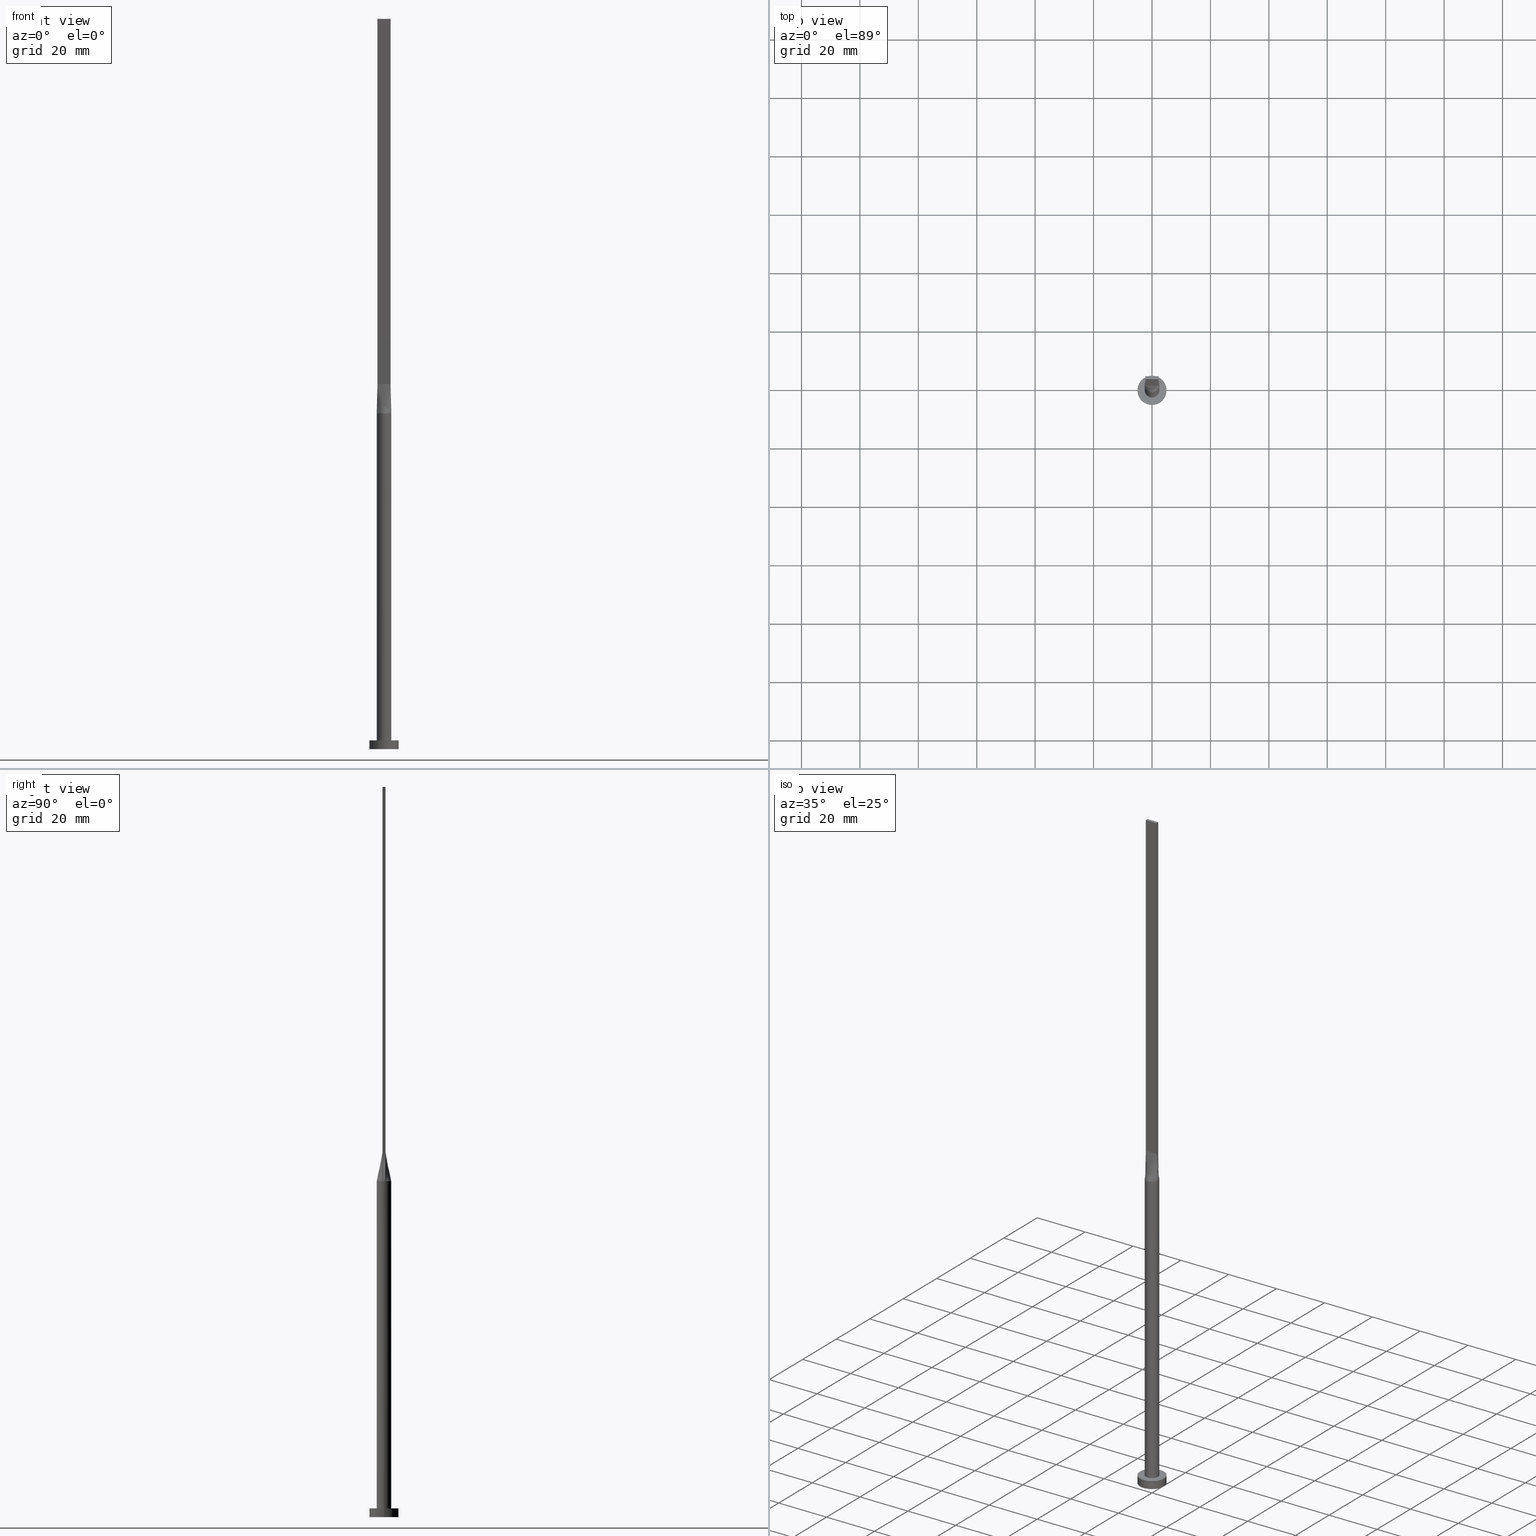
[diagram: canonical four-view strip — front | top / right | iso, engineering-drawing reading convention]
A machine part, canonical four-view strip (front | top / right | iso — engineering-drawing reading convention). The complete STEP part file that produces these views, byte-faithful:
ISO-10303-21;
HEADER;
FILE_DESCRIPTION (( 'STEP AP203' ),
    '1' );
FILE_NAME ('dfc2.STEP',
    '2023-02-13T12:34:24',
    ( '' ),
    ( '' ),
    'SwSTEP 2.0',
    'SolidWorks 2019',
    '' );
FILE_SCHEMA (( 'CONFIG_CONTROL_DESIGN' ));
ENDSEC;

DATA;
#1 = CARTESIAN_POINT ( 'NONE',  ( -0.6674771052374477431, -2.430579781493059865, 115.0000000000000142 ) ) ;
#2 = VECTOR ( 'NONE', #172, 1000.000000000000000 ) ;
#3 = LINE ( 'NONE', #226, #452 ) ;
#4 = CC_DESIGN_PERSON_AND_ORGANIZATION_ASSIGNMENT ( #440, #428, ( #199 ) ) ;
#5 = VERTEX_POINT ( 'NONE', #164 ) ;
#6 = ORIENTED_EDGE ( 'NONE', *, *, #454, .T. ) ;
#7 = CARTESIAN_POINT ( 'NONE',  ( 2.250000000000000000, -0.3333333333333324822, 125.0000000000000000 ) ) ;
#8 = APPLICATION_CONTEXT ( 'configuration controlled 3d designs of mechanical parts and assemblies' ) ;
#9 = VERTEX_POINT ( 'NONE', #168 ) ;
#10 = DIRECTION ( 'NONE',  ( -4.336808689942019708E-16, -1.000000000000000000, 0.000000000000000000 ) ) ;
#11 = COORDINATED_UNIVERSAL_TIME_OFFSET ( 1, 0, .AHEAD. ) ;
#12 = ADVANCED_FACE ( 'NONE', ( #258 ), #478, .T. ) ;
#13 = ORIENTED_EDGE ( 'NONE', *, *, #233, .F. ) ;
#14 = PERSON ( 'NEUR�EN�', 'NEUR�EN�', 'NEUR�EN�', ('NEUR�EN�'), ('NEUR�EN�'), ('NEUR�EN�') ) ;
#15 = LOCAL_TIME ( 13, 34, 24.00000000000000000, #324 ) ;
#16 = CARTESIAN_POINT ( 'NONE',  ( 0.1874999999999967526, 0.5000000000000002220, 125.0000000000000000 ) ) ;
#17 = CARTESIAN_POINT ( 'NONE',  ( -2.440467650459882343, -0.5423261445466400765, 115.0000000000000000 ) ) ;
#18 = AXIS2_PLACEMENT_3D ( 'NONE', #93, #534, #491 ) ;
#19 = CARTESIAN_POINT ( 'NONE',  ( -0.6674771052374470770, 2.430579781493059421, 114.9999999999999858 ) ) ;
#20 = FACE_OUTER_BOUND ( 'NONE', #146, .T. ) ;
#21 = DATE_AND_TIME ( #79, #15 ) ;
#22 = DIRECTION ( 'NONE',  ( -0.000000000000000000, -0.000000000000000000, -1.000000000000000000 ) ) ;
#23 = FACE_OUTER_BOUND ( 'NONE', #486, .T. ) ;
#24 = CALENDAR_DATE ( 2023, 13, 2 ) ;
#25 = DIRECTION ( 'NONE',  ( -0.000000000000000000, -0.000000000000000000, -1.000000000000000000 ) ) ;
#26 = CARTESIAN_POINT ( 'NONE',  ( -2.062500000000000000, 0.5000000000000002220, 125.0000000000000000 ) ) ;
#27 = CARTESIAN_POINT ( 'NONE',  ( 2.396350003401058526, 0.7408555563113465858, 114.9999999999999858 ) ) ;
#28 = CARTESIAN_POINT ( 'NONE',  ( 2.249999999999999556, 0.5000000000000002220, 250.0000000000000000 ) ) ;
#29 = CARTESIAN_POINT ( 'NONE',  ( -1.875000000000000222, -0.4999999999999995559, 125.0000000000000000 ) ) ;
#30 = AXIS2_PLACEMENT_3D ( 'NONE', #173, #136, #265 ) ;
#31 = VERTEX_POINT ( 'NONE', #129 ) ;
#32 = DIRECTION ( 'NONE',  ( 0.000000000000000000, 0.000000000000000000, 1.000000000000000000 ) ) ;
#33 = DIRECTION ( 'NONE',  ( 1.000000000000000000, 0.000000000000000000, -0.000000000000000000 ) ) ;
#34 = AXIS2_PLACEMENT_3D ( 'NONE', #261, #499, #215 ) ;
#35 = LINE ( 'NONE', #200, #361 ) ;
#36 = EDGE_CURVE ( 'NONE', #70, #106, #169, .T. ) ;
#37 = APPROVAL ( #500, 'NEUR�EN�' ) ;
#38 = CARTESIAN_POINT ( 'NONE',  ( 0.000000000000000000, 0.000000000000000000, 0.000000000000000000 ) ) ;
#39 = CARTESIAN_POINT ( 'NONE',  ( -2.440694335308545071, 0.5423767520433731004, 115.0000000000000000 ) ) ;
#40 = PLANE ( 'NONE',  #34 ) ;
#41 = CARTESIAN_POINT ( 'NONE',  ( -2.249999999999999556, 0.5000000000000002220, 250.0000000000000000 ) ) ;
#42 = APPLICATION_PROTOCOL_DEFINITION ( 'international standard', 'config_control_design', 1994, #8 ) ;
#43 = LINE ( 'NONE', #350, #311 ) ;
#44 = ORIENTED_EDGE ( 'NONE', *, *, #36, .F. ) ;
#45 = DIRECTION ( 'NONE',  ( -0.000000000000000000, -0.000000000000000000, -1.000000000000000000 ) ) ;
#46 = CARTESIAN_POINT ( 'NONE',  ( -2.396350003401058082, 0.7408555563113466969, 114.9999999999999858 ) ) ;
#47 = CARTESIAN_POINT ( 'NONE',  ( -0.3749999999999997780, -0.4999999999999995559, 125.0000000000000000 ) ) ;
#48 = ORIENTED_EDGE ( 'NONE', *, *, #472, .F. ) ;
#49 = LINE ( 'NONE', #230, #492 ) ;
#50 = ORIENTED_EDGE ( 'NONE', *, *, #98, .F. ) ;
#51 = CARTESIAN_POINT ( 'NONE',  ( 1.260416918790968399, -2.182794756967428640, 114.9999999999999858 ) ) ;
#52 = APPLICATION_CONTEXT ( 'configuration controlled 3d designs of mechanical parts and assemblies' ) ;
#53 = DIRECTION ( 'NONE',  ( 0.000000000000000000, 0.000000000000000000, 1.000000000000000000 ) ) ;
#54 = CARTESIAN_POINT ( 'NONE',  ( 0.000000000000000000, 0.000000000000000000, 250.0000000000000000 ) ) ;
#55 = VECTOR ( 'NONE', #138, 1000.000000000000000 ) ;
#56 = CC_DESIGN_APPROVAL ( #407, ( #199 ) ) ;
#57 = CARTESIAN_POINT ( 'NONE',  ( 2.250000000000000000, -0.4999999999999997780, 125.0000000000000000 ) ) ;
#58 = ORIENTED_EDGE ( 'NONE', *, *, #298, .F. ) ;
#59 = EDGE_LOOP ( 'NONE', ( #289, #150 ) ) ;
#60 = EDGE_CURVE ( 'NONE', #558, #229, #144, .T. ) ;
#61 = DIRECTION ( 'NONE',  ( 0.000000000000000000, 0.000000000000000000, 1.000000000000000000 ) ) ;
#62 = ADVANCED_FACE ( 'NONE', ( #23 ), #442, .T. ) ;
#63 = VECTOR ( 'NONE', #203, 1000.000000000000000 ) ;
#64 = DIRECTION ( 'NONE',  ( 1.000000000000000000, 0.000000000000000000, 0.000000000000000000 ) ) ;
#65 = ORIENTED_EDGE ( 'NONE', *, *, #406, .T. ) ;
#66 = CARTESIAN_POINT ( 'NONE',  ( -2.499291179871646840, 0.1829277781556734317, 115.0000000000000000 ) ) ;
#67 = EDGE_LOOP ( 'NONE', ( #44, #576, #182, #285, #223, #548 ) ) ;
#68 = CIRCLE ( 'NONE', #396, 5.000000000000000000 ) ;
#69 = DIRECTION ( 'NONE',  ( -0.000000000000000000, -0.000000000000000000, -1.000000000000000000 ) ) ;
#70 = VERTEX_POINT ( 'NONE', #338 ) ;
#71 = CARTESIAN_POINT ( 'NONE',  ( 2.440467650459881899, 0.5423261445466406316, 115.0000000000000000 ) ) ;
#72 = APPROVAL_DATE_TIME ( #21, #461 ) ;
#73 =( NAMED_UNIT ( * ) PLANE_ANGLE_UNIT ( ) SI_UNIT ( $, .RADIAN. ) );
#74 = ORIENTED_EDGE ( 'NONE', *, *, #268, .F. ) ;
#75 = CARTESIAN_POINT ( 'NONE',  ( 2.093723281432890104, 1.388001797188529007, 114.9999999999999574 ) ) ;
#76 = CYLINDRICAL_SURFACE ( 'NONE', #165, 2.500000000000000000 ) ;
#77 = FACE_OUTER_BOUND ( 'NONE', #148, .T. ) ;
#78 = EDGE_LOOP ( 'NONE', ( #420, #519, #74, #508, #503 ) ) ;
#79 = CALENDAR_DATE ( 2023, 13, 2 ) ;
#80 = DIRECTION ( 'NONE',  ( 1.000000000000000000, 0.000000000000000000, -0.000000000000000000 ) ) ;
#81 = CARTESIAN_POINT ( 'NONE',  ( -0.3342381693191151526, 2.499999999999999556, 115.0000000000000284 ) ) ;
#82 = DIRECTION ( 'NONE',  ( -0.000000000000000000, -0.000000000000000000, -1.000000000000000000 ) ) ;
#83 = ORIENTED_EDGE ( 'NONE', *, *, #211, .F. ) ;
#84 = CARTESIAN_POINT ( 'NONE',  ( -0.1875000000000033584, 0.5000000000000002220, 125.0000000000000000 ) ) ;
#85 = APPROVAL_STATUS ( 'not_yet_approved' ) ;
#86 = EDGE_CURVE ( 'NONE', #435, #9, #166, .T. ) ;
#87 = AXIS2_PLACEMENT_3D ( 'NONE', #567, #523, #190 ) ;
#88 = VERTEX_POINT ( 'NONE', #529 ) ;
#89 = DIRECTION ( 'NONE',  ( -0.000000000000000000, -0.000000000000000000, -1.000000000000000000 ) ) ;
#90 = ORIENTED_EDGE ( 'NONE', *, *, #391, .T. ) ;
#91 = PRODUCT ( 'dfc2', 'dfc2', '', ( #453 ) ) ;
#92 = CARTESIAN_POINT ( 'NONE',  ( -0.3342381693191159853, -2.499999999999999556, 115.0000000000000000 ) ) ;
#93 = CARTESIAN_POINT ( 'NONE',  ( 0.000000000000000000, 0.000000000000000000, 3.000000000000000000 ) ) ;
#94 = CIRCLE ( 'NONE', #339, 2.500000000000000000 ) ;
#95 = CARTESIAN_POINT ( 'NONE',  ( -2.323660390030918510, 0.9543733860570832173, 114.9999999999999858 ) ) ;
#96 = AXIS2_PLACEMENT_3D ( 'NONE', #353, #539, #457 ) ;
#97 = EDGE_LOOP ( 'NONE', ( #307, #184, #48, #552 ) ) ;
#98 = EDGE_CURVE ( 'NONE', #106, #293, #35, .T. ) ;
#99 = CALENDAR_DATE ( 2023, 13, 2 ) ;
#100 = CARTESIAN_POINT ( 'NONE',  ( 0.000000000000000000, 0.000000000000000000, 115.0000000000000000 ) ) ;
#101 = CARTESIAN_POINT ( 'NONE',  ( 2.440467650459881899, -0.5423261445466405206, 115.0000000000000000 ) ) ;
#102 = CARTESIAN_POINT ( 'NONE',  ( 0.000000000000000000, 0.000000000000000000, 3.000000000000000000 ) ) ;
#103 = VERTEX_POINT ( 'NONE', #252 ) ;
#104 = CC_DESIGN_APPROVAL ( #461, ( #404 ) ) ;
#105 = CARTESIAN_POINT ( 'NONE',  ( 2.249999999999999556, 0.3333333333333341475, 125.0000000000000000 ) ) ;
#106 = VERTEX_POINT ( 'NONE', #210 ) ;
#107 = CARTESIAN_POINT ( 'NONE',  ( -5.000000000000000000, 0.000000000000000000, 3.000000000000000000 ) ) ;
#108 = CARTESIAN_POINT ( 'NONE',  ( 0.000000000000000000, 0.000000000000000000, 0.000000000000000000 ) ) ;
#109 = LINE ( 'NONE', #308, #443 ) ;
#110 = CARTESIAN_POINT ( 'NONE',  ( -0.3342381693191151526, 2.499999999999999556, 115.0000000000000284 ) ) ;
#111 = ADVANCED_FACE ( 'NONE', ( #395 ), #394, .T. ) ;
#112 = CC_DESIGN_PERSON_AND_ORGANIZATION_ASSIGNMENT ( #392, #566, ( #404 ) ) ;
#113 = ORIENTED_EDGE ( 'NONE', *, *, #262, .F. ) ;
#114 = APPROVAL_STATUS ( 'not_yet_approved' ) ;
#115 = PLANE ( 'NONE',  #384 ) ;
#116 = DATE_AND_TIME ( #559, #579 ) ;
#117 = CIRCLE ( 'NONE', #490, 2.500000000000000000 ) ;
#118 = FACE_BOUND ( 'NONE', #412, .T. ) ;
#119 = DIRECTION ( 'NONE',  ( 1.000000000000000000, 0.000000000000000000, 0.000000000000000000 ) ) ;
#120 = ADVANCED_FACE ( 'NONE', ( #362 ), #445, .T. ) ;
#121 = PRODUCT_RELATED_PRODUCT_CATEGORY ( 'detail', '', ( #91 ) ) ;
#122 = PLANE ( 'NONE',  #553 ) ;
#123 = CIRCLE ( 'NONE', #482, 5.000000000000000000 ) ;
#124 = CARTESIAN_POINT ( 'NONE',  ( -1.935644909179609297, 1.608159499248285718, 115.0000000000000284 ) ) ;
#125 = CARTESIAN_POINT ( 'NONE',  ( -1.935644909179609297, -1.608159499248284829, 115.0000000000000142 ) ) ;
#126 = ORIENTED_EDGE ( 'NONE', *, *, #98, .T. ) ;
#127 = CARTESIAN_POINT ( 'NONE',  ( -1.312500000000000222, -0.4999999999999995559, 125.0000000000000000 ) ) ;
#128 = CARTESIAN_POINT ( 'NONE',  ( 2.396350003401058526, 0.7408555563113465858, 114.9999999999999858 ) ) ;
#129 = CARTESIAN_POINT ( 'NONE',  ( -2.249999999999999556, 0.5000000000000002220, 125.0000000000000000 ) ) ;
#130 = CARTESIAN_POINT ( 'NONE',  ( 2.249999999999999556, 0.5000000000000002220, 250.0000000000000000 ) ) ;
#131 = DIRECTION ( 'NONE',  ( -0.000000000000000000, -0.000000000000000000, -1.000000000000000000 ) ) ;
#132 = CARTESIAN_POINT ( 'NONE',  ( -0.9375000000000002220, -0.4999999999999995559, 125.0000000000000000 ) ) ;
#133 = VERTEX_POINT ( 'NONE', #471 ) ;
#134 = FACE_OUTER_BOUND ( 'NONE', #409, .T. ) ;
#135 = VECTOR ( 'NONE', #532, 1000.000000000000000 ) ;
#136 = DIRECTION ( 'NONE',  ( 7.228014483236697048E-17, 1.000000000000000000, -0.000000000000000000 ) ) ;
#137 = CARTESIAN_POINT ( 'NONE',  ( 0.3342381693191144310, -2.500000000000000444, 114.9999999999999858 ) ) ;
#138 = DIRECTION ( 'NONE',  ( -1.000000000000000000, -0.000000000000000000, -0.000000000000000000 ) ) ;
#139 = EDGE_CURVE ( 'NONE', #70, #558, #109, .T. ) ;
#140 = EDGE_CURVE ( 'NONE', #544, #88, #117, .T. ) ;
#141 = ORIENTED_EDGE ( 'NONE', *, *, #233, .T. ) ;
#142 = CARTESIAN_POINT ( 'NONE',  ( 2.499291179871646396, 0.1829277781556730154, 115.0000000000000000 ) ) ;
#143 = ORIENTED_EDGE ( 'NONE', *, *, #340, .F. ) ;
#144 = CIRCLE ( 'NONE', #565, 2.500000000000000000 ) ;
#145 = PERSON_AND_ORGANIZATION ( #14, #156 ) ;
#146 = EDGE_LOOP ( 'NONE', ( #152, #473, #58, #267 ) ) ;
#147 = CARTESIAN_POINT ( 'NONE',  ( -2.249999999999999556, -0.1666666666666657692, 125.0000000000000000 ) ) ;
#148 = EDGE_LOOP ( 'NONE', ( #363, #6, #281, #179 ) ) ;
#149 = CARTESIAN_POINT ( 'NONE',  ( 2.250000000000000000, -0.4999999999999997780, 125.0000000000000000 ) ) ;
#150 = ORIENTED_EDGE ( 'NONE', *, *, #451, .T. ) ;
#151 = APPROVAL_ROLE ( '' ) ;
#152 = ORIENTED_EDGE ( 'NONE', *, *, #537, .T. ) ;
#153 = CARTESIAN_POINT ( 'NONE',  ( 2.062499999999998668, 0.5000000000000002220, 125.0000000000000000 ) ) ;
#154 = DATE_AND_TIME ( #24, #187 ) ;
#155 = CARTESIAN_POINT ( 'NONE',  ( 1.519400572660313031, 2.006070808634367708, 115.0000000000000284 ) ) ;
#156 = ORGANIZATION ( 'NEUR�EN�', 'NEUR�EN�', '' ) ;
#157 = DIRECTION ( 'NONE',  ( -0.01904314058352520739, -0.004231809018561120961, 0.9998097071888962795 ) ) ;
#158 = DATE_TIME_ROLE ( 'creation_date' ) ;
#159 = CARTESIAN_POINT ( 'NONE',  ( -2.396350003401058970, -0.7408555563113458087, 114.9999999999999858 ) ) ;
#160 = ADVANCED_FACE ( 'NONE', ( #517 ), #572, .T. ) ;
#161 = CARTESIAN_POINT ( 'NONE',  ( -0.3750000000000034417, 0.5000000000000002220, 125.0000000000000000 ) ) ;
#162 = ADVANCED_FACE ( 'NONE', ( #263 ), #40, .F. ) ;
#163 = CARTESIAN_POINT ( 'NONE',  ( 2.440706242928429415, -0.5423794613208688942, 115.0000000000000000 ) ) ;
#164 = CARTESIAN_POINT ( 'NONE',  ( -5.000000000000000000, 0.000000000000000000, 0.000000000000000000 ) ) ;
#165 = AXIS2_PLACEMENT_3D ( 'NONE', #436, #236, #421 ) ;
#166 = LINE ( 'NONE', #382, #389 ) ;
#167 = CARTESIAN_POINT ( 'NONE',  ( -2.396350003401058082, 0.7408555563113466969, 114.9999999999999858 ) ) ;
#168 = CARTESIAN_POINT ( 'NONE',  ( 2.250000000000000000, -0.4999999999999997780, 125.0000000000000000 ) ) ;
#169 = CIRCLE ( 'NONE', #516, 2.500000000000000000 ) ;
#170 = CARTESIAN_POINT ( 'NONE',  ( -2.249999999999999556, 0.5000000000000002220, 250.0000000000000000 ) ) ;
#171 = EDGE_LOOP ( 'NONE', ( #283, #65, #113, #518 ) ) ;
#172 = DIRECTION ( 'NONE',  ( -0.01904314058352516228, 0.004231809018561174737, 0.9998097071888962795 ) ) ;
#173 = CARTESIAN_POINT ( 'NONE',  ( -2.250000000000000000, -0.4999999999999994449, 250.0000000000000000 ) ) ;
#174 = EDGE_CURVE ( 'NONE', #297, #546, #450, .T. ) ;
#175 = LINE ( 'NONE', #130, #220 ) ;
#176 = VECTOR ( 'NONE', #448, 1000.000000000000000 ) ;
#177 = APPROVAL_ROLE ( '' ) ;
#178 = CARTESIAN_POINT ( 'NONE',  ( 1.519400572660313031, -2.006070808634367264, 115.0000000000000142 ) ) ;
#179 = ORIENTED_EDGE ( 'NONE', *, *, #189, .F. ) ;
#180 = CARTESIAN_POINT ( 'NONE',  ( 0.7500000000000000000, -0.4999999999999995559, 125.0000000000000000 ) ) ;
#181 = ORIENTED_EDGE ( 'NONE', *, *, #472, .T. ) ;
#182 = ORIENTED_EDGE ( 'NONE', *, *, #60, .T. ) ;
#183 = CARTESIAN_POINT ( 'NONE',  ( -2.249999999999999556, 0.5000000000000002220, 125.0000000000000000 ) ) ;
#184 = ORIENTED_EDGE ( 'NONE', *, *, #286, .F. ) ;
#185 = CIRCLE ( 'NONE', #530, 5.000000000000000000 ) ;
#186 = EDGE_CURVE ( 'NONE', #546, #31, #574, .T. ) ;
#187 = LOCAL_TIME ( 13, 34, 24.00000000000000000, #375 ) ;
#188 = ORIENTED_EDGE ( 'NONE', *, *, #341, .T. ) ;
#189 = EDGE_CURVE ( 'NONE', #460, #5, #43, .T. ) ;
#190 = DIRECTION ( 'NONE',  ( 1.000000000000000000, 0.000000000000000000, 0.000000000000000000 ) ) ;
#191 = CARTESIAN_POINT ( 'NONE',  ( 2.440467650459881899, 0.5423261445466404096, 115.0000000000000000 ) ) ;
#192 = CARTESIAN_POINT ( 'NONE',  ( -1.260416918790968843, 2.182794756967428196, 115.0000000000000000 ) ) ;
#193 = PERSON_AND_ORGANIZATION ( #14, #156 ) ;
#194 = CARTESIAN_POINT ( 'NONE',  ( -1.312500000000001998, 0.5000000000000002220, 125.0000000000000000 ) ) ;
#195 = ORIENTED_EDGE ( 'NONE', *, *, #264, .F. ) ;
#196 = APPROVAL_ROLE ( '' ) ;
#197 = CARTESIAN_POINT ( 'NONE',  ( -2.250000000000000000, -0.4999999999999994449, 250.0000000000000000 ) ) ;
#198 = CARTESIAN_POINT ( 'NONE',  ( -2.440467650459882343, 0.5423261445466395214, 115.0000000000000000 ) ) ;
#199 = SECURITY_CLASSIFICATION ( '', '', #241 ) ;
#200 = CARTESIAN_POINT ( 'NONE',  ( 2.345233825229940283, 0.5211630722733202603, 120.0000000000000000 ) ) ;
#201 = CARTESIAN_POINT ( 'NONE',  ( 1.499999999999997558, 0.5000000000000002220, 125.0000000000000000 ) ) ;
#202 = CARTESIAN_POINT ( 'NONE',  ( -2.249999999999999556, 0.5000000000000002220, 250.0000000000000000 ) ) ;
#203 = DIRECTION ( 'NONE',  ( -4.336808689942017736E-16, 1.000000000000000000, 0.000000000000000000 ) ) ;
#204 = CARTESIAN_POINT ( 'NONE',  ( -2.249999999999999556, 0.5000000000000002220, 125.0000000000000000 ) ) ;
#205 = VECTOR ( 'NONE', #485, 1000.000000000000000 ) ;
#206 = DIRECTION ( 'NONE',  ( 0.000000000000000000, 0.000000000000000000, 1.000000000000000000 ) ) ;
#207 = ORIENTED_EDGE ( 'NONE', *, *, #406, .F. ) ;
#208 = CARTESIAN_POINT ( 'NONE',  ( 0.6674771052374470770, 2.430579781493058977, 114.9999999999999858 ) ) ;
#209 = LINE ( 'NONE', #237, #354 ) ;
#210 = CARTESIAN_POINT ( 'NONE',  ( 2.440676307083422980, 0.5423728264510006003, 115.0000000000000000 ) ) ;
#211 = EDGE_CURVE ( 'NONE', #227, #275, #456, .T. ) ;
#212 = DIRECTION ( 'NONE',  ( 1.000000000000000000, 0.000000000000000000, 0.000000000000000000 ) ) ;
#213 = ADVANCED_FACE ( 'NONE', ( #134 ), #302, .F. ) ;
#214 = PRODUCT_DEFINITION_SHAPE ( 'NONE', 'NONE',  #325 ) ;
#215 = DIRECTION ( 'NONE',  ( 0.000000000000000000, -0.000000000000000000, -1.000000000000000000 ) ) ;
#216 = DIRECTION ( 'NONE',  ( 0.000000000000000000, 0.000000000000000000, 1.000000000000000000 ) ) ;
#217 = DIRECTION ( 'NONE',  ( 1.000000000000000000, 0.000000000000000000, 0.000000000000000000 ) ) ;
#218 = ADVANCED_FACE ( 'NONE', ( #504 ), #462, .T. ) ;
#219 = EDGE_CURVE ( 'NONE', #88, #229, #314, .T. ) ;
#220 = VECTOR ( 'NONE', #89, 1000.000000000000000 ) ;
#221 = VECTOR ( 'NONE', #403, 1000.000000000000000 ) ;
#222 = VECTOR ( 'NONE', #346, 1000.000000000000000 ) ;
#223 = ORIENTED_EDGE ( 'NONE', *, *, #140, .F. ) ;
#224 =( GEOMETRIC_REPRESENTATION_CONTEXT ( 3 ) GLOBAL_UNCERTAINTY_ASSIGNED_CONTEXT ( ( #577 ) ) GLOBAL_UNIT_ASSIGNED_CONTEXT ( ( #397, #73, #301 ) ) REPRESENTATION_CONTEXT ( 'NONE', 'WORKASPACE' ) );
#225 = ORIENTED_EDGE ( 'NONE', *, *, #570, .F. ) ;
#226 = CARTESIAN_POINT ( 'NONE',  ( 5.000000000000000000, 6.123233995736766282E-16, 3.000000000000000000 ) ) ;
#227 = VERTEX_POINT ( 'NONE', #342 ) ;
#228 = AXIS2_PLACEMENT_3D ( 'NONE', #334, #533, #296 ) ;
#229 = VERTEX_POINT ( 'NONE', #372 ) ;
#230 = CARTESIAN_POINT ( 'NONE',  ( -2.345233825229940727, 0.5211630722733198162, 120.0000000000000000 ) ) ;
#231 = DIRECTION ( 'NONE',  ( 1.000000000000000000, -4.440892098500626162E-15, 0.000000000000000000 ) ) ;
#232 = CARTESIAN_POINT ( 'NONE',  ( 1.875000000000000222, -0.4999999999999997780, 125.0000000000000000 ) ) ;
#233 = EDGE_CURVE ( 'NONE', #103, #435, #522, .T. ) ;
#234 = ADVANCED_FACE ( 'NONE', ( #118, #330 ), #115, .T. ) ;
#235 = CARTESIAN_POINT ( 'NONE',  ( 2.323660390030918954, 0.9543733860570833283, 115.0000000000000426 ) ) ;
#236 = DIRECTION ( 'NONE',  ( -0.000000000000000000, -0.000000000000000000, -1.000000000000000000 ) ) ;
#237 = CARTESIAN_POINT ( 'NONE',  ( -2.345233825229941171, -0.5211630722733197052, 120.0000000000000000 ) ) ;
#238 = CARTESIAN_POINT ( 'NONE',  ( -2.249999999999999556, 0.3333333333333338699, 125.0000000000000000 ) ) ;
#239 = ORIENTED_EDGE ( 'NONE', *, *, #454, .F. ) ;
#240 = DIRECTION ( 'NONE',  ( 0.000000000000000000, 0.000000000000000000, 1.000000000000000000 ) ) ;
#241 = SECURITY_CLASSIFICATION_LEVEL ( 'unclassified' ) ;
#242 = AXIS2_PLACEMENT_3D ( 'NONE', #561, #556, #292 ) ;
#243 = CARTESIAN_POINT ( 'NONE',  ( 0.9374999999999966693, 0.5000000000000002220, 125.0000000000000000 ) ) ;
#244 = CARTESIAN_POINT ( 'NONE',  ( 2.250000000000000000, -0.4999999999999997780, 250.0000000000000000 ) ) ;
#245 = PERSON_AND_ORGANIZATION ( #14, #156 ) ;
#246 = CYLINDRICAL_SURFACE ( 'NONE', #405, 5.000000000000000000 ) ;
#247 = ORIENTED_EDGE ( 'NONE', *, *, #264, .T. ) ;
#248 = SHAPE_DEFINITION_REPRESENTATION ( #214, #526 ) ;
#249 = LINE ( 'NONE', #288, #205 ) ;
#250 = APPROVAL_PERSON_ORGANIZATION ( #521, #407, #196 ) ;
#251 = CARTESIAN_POINT ( 'NONE',  ( -0.6674771052374470770, 2.430579781493059421, 114.9999999999999858 ) ) ;
#252 = CARTESIAN_POINT ( 'NONE',  ( -2.250000000000000000, -0.4999999999999994449, 250.0000000000000000 ) ) ;
#253 = PERSON_AND_ORGANIZATION_ROLE ( 'design_supplier' ) ;
#254 = DIRECTION ( 'NONE',  ( 0.000000000000000000, 0.000000000000000000, 1.000000000000000000 ) ) ;
#255 = VECTOR ( 'NONE', #332, 1000.000000000000000 ) ;
#256 = APPROVAL_DATE_TIME ( #531, #37 ) ;
#257 = LINE ( 'NONE', #444, #2 ) ;
#258 = FACE_OUTER_BOUND ( 'NONE', #67, .T. ) ;
#259 = DIRECTION ( 'NONE',  ( 4.336808689942019708E-16, 1.000000000000000000, 0.000000000000000000 ) ) ;
#260 = LOCAL_TIME ( 13, 34, 24.00000000000000000, #475 ) ;
#261 = CARTESIAN_POINT ( 'NONE',  ( 2.249999999999999556, 0.5000000000000002220, 250.0000000000000000 ) ) ;
#262 = EDGE_CURVE ( 'NONE', #469, #9, #249, .T. ) ;
#263 = FACE_OUTER_BOUND ( 'NONE', #466, .T. ) ;
#264 = EDGE_CURVE ( 'NONE', #229, #558, #276, .T. ) ;
#265 = DIRECTION ( 'NONE',  ( -1.000000000000000000, 7.228014483236697048E-17, 0.000000000000000000 ) ) ;
#266 = LINE ( 'NONE', #408, #222 ) ;
#267 = ORIENTED_EDGE ( 'NONE', *, *, #86, .T. ) ;
#268 = EDGE_CURVE ( 'NONE', #469, #227, #209, .T. ) ;
#269 = DIRECTION ( 'NONE',  ( -4.336808689942019708E-16, -1.000000000000000000, 0.000000000000000000 ) ) ;
#270 = EDGE_LOOP ( 'NONE', ( #464, #459 ) ) ;
#271 = CARTESIAN_POINT ( 'NONE',  ( 2.479683336734391563, 0.3658555563113463638, 115.0000000000000000 ) ) ;
#272 = AXIS2_PLACEMENT_3D ( 'NONE', #535, #32, #231 ) ;
#273 = ORIENTED_EDGE ( 'NONE', *, *, #219, .T. ) ;
#274 = DIRECTION ( 'NONE',  ( 0.000000000000000000, 0.000000000000000000, 1.000000000000000000 ) ) ;
#275 = VERTEX_POINT ( 'NONE', #163 ) ;
#276 = CIRCLE ( 'NONE', #87, 2.500000000000000000 ) ;
#277 = ADVANCED_FACE ( 'NONE', ( #77 ), #246, .T. ) ;
#278 = CARTESIAN_POINT ( 'NONE',  ( -2.500000000000000000, 0.000000000000000000, 115.0000000000000000 ) ) ;
#279 = CC_DESIGN_PERSON_AND_ORGANIZATION_ASSIGNMENT ( #193, #253, ( #404 ) ) ;
#280 = CARTESIAN_POINT ( 'NONE',  ( -2.479683336734392007, -0.3658555563113460307, 115.0000000000000000 ) ) ;
#281 = ORIENTED_EDGE ( 'NONE', *, *, #549, .T. ) ;
#282 = CARTESIAN_POINT ( 'NONE',  ( -2.479683336734391563, 0.3658555563113465858, 115.0000000000000000 ) ) ;
#283 = ORIENTED_EDGE ( 'NONE', *, *, #211, .T. ) ;
#284 = FACE_OUTER_BOUND ( 'NONE', #417, .T. ) ;
#285 = ORIENTED_EDGE ( 'NONE', *, *, #219, .F. ) ;
#286 = EDGE_CURVE ( 'NONE', #103, #469, #336, .T. ) ;
#287 = AXIS2_PLACEMENT_3D ( 'NONE', #54, #61, #413 ) ;
#288 = CARTESIAN_POINT ( 'NONE',  ( -2.250000000000000000, -0.4999999999999994449, 125.0000000000000000 ) ) ;
#289 = ORIENTED_EDGE ( 'NONE', *, *, #340, .T. ) ;
#290 = CALENDAR_DATE ( 2023, 13, 2 ) ;
#291 = CARTESIAN_POINT ( 'NONE',  ( 2.323660390030918954, 0.9543733860570833283, 115.0000000000000426 ) ) ;
#292 = DIRECTION ( 'NONE',  ( -1.000000000000000000, 0.000000000000000000, 0.000000000000000000 ) ) ;
#293 = VERTEX_POINT ( 'NONE', #437 ) ;
#294 = CARTESIAN_POINT ( 'NONE',  ( 0.000000000000000000, 0.000000000000000000, 0.000000000000000000 ) ) ;
#295 = CARTESIAN_POINT ( 'NONE',  ( -1.519400572660313253, 2.006070808634367264, 115.0000000000000426 ) ) ;
#296 = DIRECTION ( 'NONE',  ( -1.000000000000000000, 0.000000000000000000, 0.000000000000000000 ) ) ;
#297 = VERTEX_POINT ( 'NONE', #28 ) ;
#298 = EDGE_CURVE ( 'NONE', #435, #297, #528, .T. ) ;
#299 = CIRCLE ( 'NONE', #18, 5.000000000000000000 ) ;
#300 = CARTESIAN_POINT ( 'NONE',  ( -1.519400572660313919, -2.006070808634366820, 115.0000000000000284 ) ) ;
#301 =( NAMED_UNIT ( * ) SI_UNIT ( $, .STERADIAN. ) SOLID_ANGLE_UNIT ( ) );
#302 = PLANE ( 'NONE',  #30 ) ;
#303 = CARTESIAN_POINT ( 'NONE',  ( 0.1875000000000004441, -0.4999999999999995559, 125.0000000000000000 ) ) ;
#304 = CARTESIAN_POINT ( 'NONE',  ( -2.249999999999999556, 0.5000000000000002220, 125.0000000000000000 ) ) ;
#305 = CARTESIAN_POINT ( 'NONE',  ( -2.249999999999999556, 0.5000000000000002220, 250.0000000000000000 ) ) ;
#306 = ORIENTED_EDGE ( 'NONE', *, *, #139, .F. ) ;
#307 = ORIENTED_EDGE ( 'NONE', *, *, #438, .T. ) ;
#308 = CARTESIAN_POINT ( 'NONE',  ( 2.500000000000000000, 3.061616997868383141E-16, 115.0000000000000000 ) ) ;
#309 = ORIENTED_EDGE ( 'NONE', *, *, #174, .T. ) ;
#310 = EDGE_LOOP ( 'NONE', ( #309, #181, #141, #483 ) ) ;
#311 = VECTOR ( 'NONE', #131, 1000.000000000000000 ) ;
#312 = CARTESIAN_POINT ( 'NONE',  ( 0.9375000000000000000, -0.4999999999999995559, 125.0000000000000000 ) ) ;
#313 = ORIENTED_EDGE ( 'NONE', *, *, #538, .T. ) ;
#314 = LINE ( 'NONE', #278, #359 ) ;
#315 = VECTOR ( 'NONE', #10, 1000.000000000000000 ) ;
#316 = ORIENTED_EDGE ( 'NONE', *, *, #391, .F. ) ;
#317 = ADVANCED_FACE ( 'NONE', ( #564 ), #122, .F. ) ;
#318 = APPROVAL_PERSON_ORGANIZATION ( #145, #37, #177 ) ;
#319 = CARTESIAN_POINT ( 'NONE',  ( 2.479683336734391563, -0.3658555563113470299, 115.0000000000000000 ) ) ;
#320 = ORIENTED_EDGE ( 'NONE', *, *, #538, .F. ) ;
#321 = CARTESIAN_POINT ( 'NONE',  ( 2.249999999999999556, -0.1666666666666655749, 125.0000000000000000 ) ) ;
#322 = EDGE_LOOP ( 'NONE', ( #313, #357, #126, #542, #207 ) ) ;
#323 = DIRECTION ( 'NONE',  ( 0.01904314058352524902, -0.004231809018561034225, 0.9998097071888962795 ) ) ;
#324 = COORDINATED_UNIVERSAL_TIME_OFFSET ( 1, 0, .AHEAD. ) ;
#325 = PRODUCT_DEFINITION ( 'NEZN�M�', '', #404, #493 ) ;
#326 = ORIENTED_EDGE ( 'NONE', *, *, #60, .F. ) ;
#327 = CARTESIAN_POINT ( 'NONE',  ( -1.519400572660313253, 2.006070808634367264, 115.0000000000000426 ) ) ;
#328 = CARTESIAN_POINT ( 'NONE',  ( -2.440694335308545071, 0.5423767520433731004, 115.0000000000000000 ) ) ;
#329 = DATE_TIME_ROLE ( 'classification_date' ) ;
#330 = FACE_OUTER_BOUND ( 'NONE', #59, .T. ) ;
#331 = CARTESIAN_POINT ( 'NONE',  ( -2.440467650459882343, -0.5423261445466400765, 115.0000000000000000 ) ) ;
#332 = DIRECTION ( 'NONE',  ( -0.000000000000000000, -0.000000000000000000, -1.000000000000000000 ) ) ;
#333 = CARTESIAN_POINT ( 'NONE',  ( 0.6674771052374470770, 2.430579781493058977, 114.9999999999999858 ) ) ;
#334 = CARTESIAN_POINT ( 'NONE',  ( 0.000000000000000000, 0.000000000000000000, 115.0000000000000000 ) ) ;
#335 = CARTESIAN_POINT ( 'NONE',  ( -0.7500000000000029976, 0.5000000000000002220, 125.0000000000000000 ) ) ;
#336 = LINE ( 'NONE', #197, #255 ) ;
#337 = CARTESIAN_POINT ( 'NONE',  ( 1.935644909179608186, 1.608159499248285051, 114.9999999999999716 ) ) ;
#338 = CARTESIAN_POINT ( 'NONE',  ( 2.499645589935823420, 5.999196936655281332E-16, 115.0000000000000000 ) ) ;
#339 = AXIS2_PLACEMENT_3D ( 'NONE', #487, #348, #212 ) ;
#340 = EDGE_CURVE ( 'NONE', #460, #133, #299, .T. ) ;
#341 = EDGE_CURVE ( 'NONE', #297, #293, #175, .T. ) ;
#342 = CARTESIAN_POINT ( 'NONE',  ( -2.440688158044365785, -0.5423755258804862089, 115.0000000000000000 ) ) ;
#343 = ORIENTED_EDGE ( 'NONE', *, *, #86, .F. ) ;
#344 = DIRECTION ( 'NONE',  ( 4.336808689942017736E-16, -1.000000000000000000, 0.000000000000000000 ) ) ;
#345 = B_SPLINE_SURFACE_WITH_KNOTS ( 'NONE', 3, 1, ( 
 ( #71, #484 ),
 ( #27, #153 ),
 ( #235, #427 ),
 ( #75, #201 ),
 ( #383, #520 ),
 ( #379, #243 ),
 ( #563, #470 ),
 ( #208, #513 ),
 ( #424, #16 ),
 ( #110, #84 ),
 ( #19, #161 ),
 ( #192, #335 ),
 ( #327, #402 ),
 ( #124, #194 ),
 ( #377, #555 ),
 ( #477, #433 ),
 ( #167, #26 ),
 ( #198, #204 ) ),
 .UNSPECIFIED., .F., .F., .F.,
 ( 4, 2, 2, 2, 2, 2, 2, 2, 4 ),
 ( 2, 2 ),
 ( 0.000000000000000000, 0.1249999999999999722, 0.2500000000000000000, 0.3750000000000000000, 0.5000000000000001110, 0.6250000000000001110, 0.7500000000000000000, 0.8750000000000000000, 1.000000000000000000 ),
 ( 0.000000000000000000, 1.000000000000000000 ),
 .UNSPECIFIED. ) ;
#346 = DIRECTION ( 'NONE',  ( -4.336808689942017736E-16, 1.000000000000000000, -0.000000000000000000 ) ) ;
#347 = CARTESIAN_POINT ( 'NONE',  ( 2.440676307083422980, 0.5423728264510006003, 115.0000000000000000 ) ) ;
#348 = DIRECTION ( 'NONE',  ( 0.000000000000000000, 0.000000000000000000, 1.000000000000000000 ) ) ;
#349 = CARTESIAN_POINT ( 'NONE',  ( -1.935644909179609297, 1.608159499248285718, 115.0000000000000284 ) ) ;
#350 = CARTESIAN_POINT ( 'NONE',  ( -5.000000000000000000, 0.000000000000000000, 3.000000000000000000 ) ) ;
#351 = ORIENTED_EDGE ( 'NONE', *, *, #388, .T. ) ;
#352 = PLANE ( 'NONE',  #568 ) ;
#353 = CARTESIAN_POINT ( 'NONE',  ( 0.000000000000000000, 0.000000000000000000, 0.000000000000000000 ) ) ;
#354 = VECTOR ( 'NONE', #476, 1000.000000000000000 ) ;
#355 = CC_DESIGN_PERSON_AND_ORGANIZATION_ASSIGNMENT ( #245, #371, ( #325 ) ) ;
#356 = CARTESIAN_POINT ( 'NONE',  ( -1.260416918790969509, -2.182794756967427752, 115.0000000000000000 ) ) ;
#357 = ORIENTED_EDGE ( 'NONE', *, *, #36, .T. ) ;
#358 = CARTESIAN_POINT ( 'NONE',  ( 2.062500000000000000, -0.4999999999999997780, 125.0000000000000000 ) ) ;
#359 = VECTOR ( 'NONE', #22, 1000.000000000000000 ) ;
#360 = ORIENTED_EDGE ( 'NONE', *, *, #189, .T. ) ;
#361 = VECTOR ( 'NONE', #157, 1000.000000000000000 ) ;
#362 = FACE_OUTER_BOUND ( 'NONE', #322, .T. ) ;
#363 = ORIENTED_EDGE ( 'NONE', *, *, #451, .F. ) ;
#364 = ADVANCED_FACE ( 'NONE', ( #573 ), #352, .F. ) ;
#365 = CARTESIAN_POINT ( 'NONE',  ( -2.249999999999999556, 0.1666666666666674068, 125.0000000000000000 ) ) ;
#366 = VERTEX_POINT ( 'NONE', #400 ) ;
#367 = LOCAL_TIME ( 13, 34, 24.00000000000000000, #11 ) ;
#368 = DIRECTION ( 'NONE',  ( 1.000000000000000000, 0.000000000000000000, 0.000000000000000000 ) ) ;
#369 = CARTESIAN_POINT ( 'NONE',  ( 2.440467650459881899, -0.5423261445466410757, 115.0000000000000000 ) ) ;
#370 = ORIENTED_EDGE ( 'NONE', *, *, #495, .T. ) ;
#371 = PERSON_AND_ORGANIZATION_ROLE ( 'creator' ) ;
#372 = CARTESIAN_POINT ( 'NONE',  ( -2.500000000000000000, 0.000000000000000000, 3.000000000000000000 ) ) ;
#373 = CARTESIAN_POINT ( 'NONE',  ( 2.499291179871646396, -0.1829277781556736815, 115.0000000000000000 ) ) ;
#374 = PLANE ( 'NONE',  #498 ) ;
#375 = COORDINATED_UNIVERSAL_TIME_OFFSET ( 1, 0, .AHEAD. ) ;
#376 = CARTESIAN_POINT ( 'NONE',  ( -2.250000000000000000, -0.4999999999999994449, 250.0000000000000000 ) ) ;
#377 = CARTESIAN_POINT ( 'NONE',  ( -2.093723281432891437, 1.388001797188529451, 115.0000000000000284 ) ) ;
#378 = MANIFOLD_SOLID_BREP ( 'P�idat vysunut�m5', #494 ) ;
#379 = CARTESIAN_POINT ( 'NONE',  ( 1.519400572660313031, 2.006070808634367708, 115.0000000000000284 ) ) ;
#380 = FACE_OUTER_BOUND ( 'NONE', #541, .T. ) ;
#381 = COORDINATED_UNIVERSAL_TIME_OFFSET ( 1, 0, .AHEAD. ) ;
#382 = CARTESIAN_POINT ( 'NONE',  ( 2.250000000000000000, -0.4999999999999997780, 250.0000000000000000 ) ) ;
#383 = CARTESIAN_POINT ( 'NONE',  ( 1.935644909179608186, 1.608159499248285051, 114.9999999999999716 ) ) ;
#384 = AXIS2_PLACEMENT_3D ( 'NONE', #393, #554, #80 ) ;
#385 = CARTESIAN_POINT ( 'NONE',  ( 2.250000000000000000, -0.4999999999999997780, 250.0000000000000000 ) ) ;
#386 = CARTESIAN_POINT ( 'NONE',  ( -1.260416918790968843, 2.182794756967428196, 115.0000000000000000 ) ) ;
#387 = CARTESIAN_POINT ( 'NONE',  ( -1.500000000000000222, -0.4999999999999995559, 125.0000000000000000 ) ) ;
#388 = EDGE_CURVE ( 'NONE', #5, #366, #68, .T. ) ;
#389 = VECTOR ( 'NONE', #82, 1000.000000000000000 ) ;
#390 = ORIENTED_EDGE ( 'NONE', *, *, #262, .T. ) ;
#391 = EDGE_CURVE ( 'NONE', #293, #31, #578, .T. ) ;
#392 = PERSON_AND_ORGANIZATION ( #14, #156 ) ;
#393 = CARTESIAN_POINT ( 'NONE',  ( 0.000000000000000000, 0.000000000000000000, 3.000000000000000000 ) ) ;
#394 = B_SPLINE_SURFACE_WITH_KNOTS ( 'NONE', 3, 1, ( 
 ( #331, #489 ),
 ( #159, #481 ),
 ( #439, #29 ),
 ( #569, #387 ),
 ( #125, #127 ),
 ( #300, #132 ),
 ( #356, #458 ),
 ( #1, #47 ),
 ( #92, #447 ),
 ( #137, #303 ),
 ( #468, #425 ),
 ( #51, #180 ),
 ( #178, #312 ),
 ( #551, #505 ),
 ( #506, #415 ),
 ( #422, #232 ),
 ( #543, #358 ),
 ( #101, #57 ) ),
 .UNSPECIFIED., .F., .F., .F.,
 ( 4, 2, 2, 2, 2, 2, 2, 2, 4 ),
 ( 2, 2 ),
 ( 0.000000000000000000, 0.1249999999999999167, 0.2499999999999998335, 0.3749999999999998335, 0.4999999999999998890, 0.6249999999999998890, 0.7499999999999998890, 0.8750000000000000000, 1.000000000000000000 ),
 ( 0.000000000000000000, 1.000000000000000000 ),
 .UNSPECIFIED. ) ;
#395 = FACE_OUTER_BOUND ( 'NONE', #171, .T. ) ;
#396 = AXIS2_PLACEMENT_3D ( 'NONE', #38, #540, #217 ) ;
#397 =( LENGTH_UNIT ( ) NAMED_UNIT ( * ) SI_UNIT ( .MILLI., .METRE. ) );
#398 = CARTESIAN_POINT ( 'NONE',  ( 2.250000000000000000, -0.4999999999999997780, 250.0000000000000000 ) ) ;
#399 = CARTESIAN_POINT ( 'NONE',  ( 2.249999999999999556, 0.5000000000000002220, 250.0000000000000000 ) ) ;
#400 = CARTESIAN_POINT ( 'NONE',  ( 5.000000000000000000, 6.123233995736766282E-16, 0.000000000000000000 ) ) ;
#401 = DIRECTION ( 'NONE',  ( 1.000000000000000000, 0.000000000000000000, 0.000000000000000000 ) ) ;
#402 = CARTESIAN_POINT ( 'NONE',  ( -0.9375000000000026645, 0.5000000000000002220, 125.0000000000000000 ) ) ;
#403 = DIRECTION ( 'NONE',  ( -0.000000000000000000, -0.000000000000000000, -1.000000000000000000 ) ) ;
#404 = PRODUCT_DEFINITION_FORMATION_WITH_SPECIFIED_SOURCE ( 'LIBOVOLN�', '', #91, .NOT_KNOWN. ) ;
#405 = AXIS2_PLACEMENT_3D ( 'NONE', #432, #25, #441 ) ;
#406 = EDGE_CURVE ( 'NONE', #275, #9, #257, .T. ) ;
#407 = APPROVAL ( #114, 'NEUR�EN�' ) ;
#408 = CARTESIAN_POINT ( 'NONE',  ( 2.249999999999999556, 0.5000000000000002220, 125.0000000000000000 ) ) ;
#409 = EDGE_LOOP ( 'NONE', ( #390, #343, #13, #562 ) ) ;
#410 = VECTOR ( 'NONE', #269, 1000.000000000000000 ) ;
#411 = CARTESIAN_POINT ( 'NONE',  ( -2.499291179871646840, -0.1829277781556729043, 115.0000000000000000 ) ) ;
#412 = EDGE_LOOP ( 'NONE', ( #195, #326 ) ) ;
#413 = DIRECTION ( 'NONE',  ( 1.000000000000000000, 0.000000000000000000, -0.000000000000000000 ) ) ;
#414 = CC_DESIGN_DATE_AND_TIME_ASSIGNMENT ( #154, #329, ( #199 ) ) ;
#415 = CARTESIAN_POINT ( 'NONE',  ( 1.500000000000000000, -0.4999999999999997780, 125.0000000000000000 ) ) ;
#416 = AXIS2_PLACEMENT_3D ( 'NONE', #496, #216, #401 ) ;
#417 = EDGE_LOOP ( 'NONE', ( #536, #370, #316, #50 ) ) ;
#418 = CARTESIAN_POINT ( 'NONE',  ( -2.250000000000000000, -0.4999999999999994449, 125.0000000000000000 ) ) ;
#419 = CARTESIAN_POINT ( 'NONE',  ( -2.440467650459881899, 0.5423261445466406316, 115.0000000000000000 ) ) ;
#420 = ORIENTED_EDGE ( 'NONE', *, *, #140, .T. ) ;
#421 = DIRECTION ( 'NONE',  ( -1.000000000000000000, 0.000000000000000000, 0.000000000000000000 ) ) ;
#422 = CARTESIAN_POINT ( 'NONE',  ( 2.323660390030917178, -0.9543733860570838834, 115.0000000000000284 ) ) ;
#423 = CC_DESIGN_SECURITY_CLASSIFICATION ( #199, ( #404 ) ) ;
#424 = CARTESIAN_POINT ( 'NONE',  ( 0.3342381693191150416, 2.499999999999999556, 114.9999999999999858 ) ) ;
#425 = CARTESIAN_POINT ( 'NONE',  ( 0.3750000000000002220, -0.4999999999999995559, 125.0000000000000000 ) ) ;
#426 = ORIENTED_EDGE ( 'NONE', *, *, #174, .F. ) ;
#427 = CARTESIAN_POINT ( 'NONE',  ( 1.874999999999998446, 0.5000000000000002220, 125.0000000000000000 ) ) ;
#428 = PERSON_AND_ORGANIZATION_ROLE ( 'classification_officer' ) ;
#429 = DIRECTION ( 'NONE',  ( 0.000000000000000000, 0.000000000000000000, 1.000000000000000000 ) ) ;
#430 = DIRECTION ( 'NONE',  ( -1.000000000000000000, -4.336808689942017736E-16, 0.000000000000000000 ) ) ;
#431 = PERSON_AND_ORGANIZATION ( #14, #156 ) ;
#432 = CARTESIAN_POINT ( 'NONE',  ( 0.000000000000000000, 0.000000000000000000, 3.000000000000000000 ) ) ;
#433 = CARTESIAN_POINT ( 'NONE',  ( -1.875000000000000666, 0.5000000000000002220, 125.0000000000000000 ) ) ;
#434 = CARTESIAN_POINT ( 'NONE',  ( 0.000000000000000000, 0.000000000000000000, 3.000000000000000000 ) ) ;
#435 = VERTEX_POINT ( 'NONE', #398 ) ;
#436 = CARTESIAN_POINT ( 'NONE',  ( 0.000000000000000000, 0.000000000000000000, 115.0000000000000000 ) ) ;
#437 = CARTESIAN_POINT ( 'NONE',  ( 2.249999999999999556, 0.5000000000000002220, 125.0000000000000000 ) ) ;
#438 = EDGE_CURVE ( 'NONE', #31, #469, #575, .T. ) ;
#439 = CARTESIAN_POINT ( 'NONE',  ( -2.323660390030918066, -0.9543733860570832173, 115.0000000000000284 ) ) ;
#440 = PERSON_AND_ORGANIZATION ( #14, #156 ) ;
#441 = DIRECTION ( 'NONE',  ( -1.000000000000000000, 0.000000000000000000, 0.000000000000000000 ) ) ;
#442 = CYLINDRICAL_SURFACE ( 'NONE', #242, 5.000000000000000000 ) ;
#443 = VECTOR ( 'NONE', #69, 1000.000000000000000 ) ;
#444 = CARTESIAN_POINT ( 'NONE',  ( 2.345233825229940727, -0.5211630722733201493, 120.0000000000000000 ) ) ;
#445 = B_SPLINE_SURFACE_WITH_KNOTS ( 'NONE', 3, 1, ( 
 ( #369, #149 ),
 ( #319, #7 ),
 ( #373, #321 ),
 ( #142, #545 ),
 ( #271, #105 ),
 ( #191, #511 ) ),
 .UNSPECIFIED., .F., .F., .F.,
 ( 4, 2, 4 ),
 ( 2, 2 ),
 ( 0.000000000000000000, 0.5000000000000000000, 1.000000000000000000 ),
 ( 0.000000000000000000, 1.000000000000000000 ),
 .UNSPECIFIED. ) ;
#446 = CARTESIAN_POINT ( 'NONE',  ( 2.500000000000000000, 3.061616997868383141E-16, 3.000000000000000000 ) ) ;
#447 = CARTESIAN_POINT ( 'NONE',  ( -0.1874999999999995837, -0.4999999999999995559, 125.0000000000000000 ) ) ;
#448 = DIRECTION ( 'NONE',  ( -1.000000000000000000, 0.000000000000000000, 0.000000000000000000 ) ) ;
#449 = DIRECTION ( 'NONE',  ( 1.000000000000000000, -4.336808689942019708E-16, 0.000000000000000000 ) ) ;
#450 = LINE ( 'NONE', #399, #176 ) ;
#451 = EDGE_CURVE ( 'NONE', #133, #460, #123, .T. ) ;
#452 = VECTOR ( 'NONE', #45, 1000.000000000000000 ) ;
#453 = MECHANICAL_CONTEXT ( 'NONE', #8, 'mechanical' ) ;
#454 = EDGE_CURVE ( 'NONE', #133, #366, #3, .T. ) ;
#455 = CC_DESIGN_DATE_AND_TIME_ASSIGNMENT ( #527, #158, ( #325 ) ) ;
#456 = CIRCLE ( 'NONE', #416, 2.500000000000000000 ) ;
#457 = DIRECTION ( 'NONE',  ( 1.000000000000000000, 0.000000000000000000, 0.000000000000000000 ) ) ;
#458 = CARTESIAN_POINT ( 'NONE',  ( -0.7500000000000002220, -0.4999999999999995559, 125.0000000000000000 ) ) ;
#459 = ORIENTED_EDGE ( 'NONE', *, *, #549, .F. ) ;
#460 = VERTEX_POINT ( 'NONE', #107 ) ;
#461 = APPROVAL ( #85, 'NEUR�EN�' ) ;
#462 = PLANE ( 'NONE',  #287 ) ;
#463 = CIRCLE ( 'NONE', #272, 2.500000000000000000 ) ;
#464 = ORIENTED_EDGE ( 'NONE', *, *, #388, .F. ) ;
#465 = APPLICATION_PROTOCOL_DEFINITION ( 'international standard', 'config_control_design', 1994, #52 ) ;
#466 = EDGE_LOOP ( 'NONE', ( #90, #512, #426, #188 ) ) ;
#467 = PERSON_AND_ORGANIZATION_ROLE ( 'design_owner' ) ;
#468 = CARTESIAN_POINT ( 'NONE',  ( 0.6674771052374466329, -2.430579781493059865, 114.9999999999999858 ) ) ;
#469 = VERTEX_POINT ( 'NONE', #418 ) ;
#470 = CARTESIAN_POINT ( 'NONE',  ( 0.7499999999999966693, 0.5000000000000002220, 125.0000000000000000 ) ) ;
#471 = CARTESIAN_POINT ( 'NONE',  ( 5.000000000000000000, 6.123233995736766282E-16, 3.000000000000000000 ) ) ;
#472 = EDGE_CURVE ( 'NONE', #546, #103, #502, .T. ) ;
#473 = ORIENTED_EDGE ( 'NONE', *, *, #341, .F. ) ;
#474 = DIRECTION ( 'NONE',  ( 1.000000000000000000, 0.000000000000000000, 0.000000000000000000 ) ) ;
#475 = COORDINATED_UNIVERSAL_TIME_OFFSET ( 1, 0, .AHEAD. ) ;
#476 = DIRECTION ( 'NONE',  ( -0.01904314058352520739, -0.004231809018561164329, -0.9998097071888962795 ) ) ;
#477 = CARTESIAN_POINT ( 'NONE',  ( -2.323660390030918510, 0.9543733860570832173, 114.9999999999999858 ) ) ;
#478 = CYLINDRICAL_SURFACE ( 'NONE', #228, 2.500000000000000000 ) ;
#479 = APPROVAL_DATE_TIME ( #116, #407 ) ;
#480 = CARTESIAN_POINT ( 'NONE',  ( 2.093723281432890104, 1.388001797188529007, 114.9999999999999574 ) ) ;
#481 = CARTESIAN_POINT ( 'NONE',  ( -2.062500000000000000, -0.4999999999999995559, 125.0000000000000000 ) ) ;
#482 = AXIS2_PLACEMENT_3D ( 'NONE', #102, #53, #509 ) ;
#483 = ORIENTED_EDGE ( 'NONE', *, *, #298, .T. ) ;
#484 = CARTESIAN_POINT ( 'NONE',  ( 2.249999999999999556, 0.5000000000000002220, 125.0000000000000000 ) ) ;
#485 = DIRECTION ( 'NONE',  ( 1.000000000000000000, -7.228014483236697048E-17, 0.000000000000000000 ) ) ;
#486 = EDGE_LOOP ( 'NONE', ( #239, #143, #360, #351 ) ) ;
#487 = CARTESIAN_POINT ( 'NONE',  ( 0.000000000000000000, 0.000000000000000000, 115.0000000000000000 ) ) ;
#488 = CARTESIAN_POINT ( 'NONE',  ( -2.249999999999999556, 0.5000000000000002220, 125.0000000000000000 ) ) ;
#489 = CARTESIAN_POINT ( 'NONE',  ( -2.250000000000000000, -0.4999999999999994449, 125.0000000000000000 ) ) ;
#490 = AXIS2_PLACEMENT_3D ( 'NONE', #100, #274, #64 ) ;
#491 = DIRECTION ( 'NONE',  ( 1.000000000000000000, 0.000000000000000000, 0.000000000000000000 ) ) ;
#492 = VECTOR ( 'NONE', #323, 1000.000000000000000 ) ;
#493 = DESIGN_CONTEXT ( 'detailed design', #52, 'design' ) ;
#494 = CLOSED_SHELL ( 'NONE', ( #12, #277, #62, #234, #317, #550, #111, #120, #160, #510, #162, #364, #213, #557, #218 ) ) ;
#495 = EDGE_CURVE ( 'NONE', #544, #31, #49, .T. ) ;
#496 = CARTESIAN_POINT ( 'NONE',  ( 0.000000000000000000, 0.000000000000000000, 115.0000000000000000 ) ) ;
#497 = CARTESIAN_POINT ( 'NONE',  ( -2.093723281432891437, 1.388001797188529451, 115.0000000000000284 ) ) ;
#498 = AXIS2_PLACEMENT_3D ( 'NONE', #244, #430, #344 ) ;
#499 = DIRECTION ( 'NONE',  ( 0.000000000000000000, -1.000000000000000000, 0.000000000000000000 ) ) ;
#500 = APPROVAL_STATUS ( 'not_yet_approved' ) ;
#501 = CARTESIAN_POINT ( 'NONE',  ( -2.250000000000000000, -0.4999999999999993339, 125.0000000000000000 ) ) ;
#502 = LINE ( 'NONE', #305, #410 ) ;
#503 = ORIENTED_EDGE ( 'NONE', *, *, #495, .F. ) ;
#504 = FACE_OUTER_BOUND ( 'NONE', #310, .T. ) ;
#505 = CARTESIAN_POINT ( 'NONE',  ( 1.312499999999999778, -0.4999999999999996669, 125.0000000000000000 ) ) ;
#506 = CARTESIAN_POINT ( 'NONE',  ( 2.093723281432890548, -1.388001797188530340, 115.0000000000000000 ) ) ;
#507 = APPROVAL_PERSON_ORGANIZATION ( #431, #461, #151 ) ;
#508 = ORIENTED_EDGE ( 'NONE', *, *, #438, .F. ) ;
#509 = DIRECTION ( 'NONE',  ( 1.000000000000000000, 0.000000000000000000, 0.000000000000000000 ) ) ;
#510 = ADVANCED_FACE ( 'NONE', ( #284 ), #345, .T. ) ;
#511 = CARTESIAN_POINT ( 'NONE',  ( 2.249999999999999556, 0.5000000000000002220, 125.0000000000000000 ) ) ;
#512 = ORIENTED_EDGE ( 'NONE', *, *, #186, .F. ) ;
#513 = CARTESIAN_POINT ( 'NONE',  ( 0.3749999999999966693, 0.5000000000000002220, 125.0000000000000000 ) ) ;
#514 = EDGE_CURVE ( 'NONE', #106, #544, #580, .T. ) ;
#515 = CC_DESIGN_PERSON_AND_ORGANIZATION_ASSIGNMENT ( #581, #467, ( #91 ) ) ;
#516 = AXIS2_PLACEMENT_3D ( 'NONE', #525, #206, #474 ) ;
#517 = FACE_OUTER_BOUND ( 'NONE', #78, .T. ) ;
#518 = ORIENTED_EDGE ( 'NONE', *, *, #268, .T. ) ;
#519 = ORIENTED_EDGE ( 'NONE', *, *, #570, .T. ) ;
#520 = CARTESIAN_POINT ( 'NONE',  ( 1.312499999999997335, 0.5000000000000002220, 125.0000000000000000 ) ) ;
#521 = PERSON_AND_ORGANIZATION ( #14, #156 ) ;
#522 = LINE ( 'NONE', #376, #135 ) ;
#523 = DIRECTION ( 'NONE',  ( 0.000000000000000000, 0.000000000000000000, 1.000000000000000000 ) ) ;
#524 = CARTESIAN_POINT ( 'NONE',  ( 0.3342381693191150416, 2.499999999999999556, 114.9999999999999858 ) ) ;
#525 = CARTESIAN_POINT ( 'NONE',  ( 0.000000000000000000, 0.000000000000000000, 115.0000000000000000 ) ) ;
#526 = ADVANCED_BREP_SHAPE_REPRESENTATION ( 'dfc2', ( #378, #96 ), #224 ) ;
#527 = DATE_AND_TIME ( #290, #260 ) ;
#528 = LINE ( 'NONE', #385, #63 ) ;
#529 = CARTESIAN_POINT ( 'NONE',  ( -2.499645589935823420, -1.700711608024726496E-15, 115.0000000000000000 ) ) ;
#530 = AXIS2_PLACEMENT_3D ( 'NONE', #108, #240, #368 ) ;
#531 = DATE_AND_TIME ( #99, #367 ) ;
#532 = DIRECTION ( 'NONE',  ( 1.000000000000000000, -7.228014483236697048E-17, 0.000000000000000000 ) ) ;
#533 = DIRECTION ( 'NONE',  ( -0.000000000000000000, -0.000000000000000000, -1.000000000000000000 ) ) ;
#534 = DIRECTION ( 'NONE',  ( 0.000000000000000000, 0.000000000000000000, 1.000000000000000000 ) ) ;
#535 = CARTESIAN_POINT ( 'NONE',  ( 0.000000000000000000, 0.000000000000000000, 115.0000000000000000 ) ) ;
#536 = ORIENTED_EDGE ( 'NONE', *, *, #514, .T. ) ;
#537 = EDGE_CURVE ( 'NONE', #9, #293, #266, .T. ) ;
#538 = EDGE_CURVE ( 'NONE', #275, #70, #463, .T. ) ;
#539 = DIRECTION ( 'NONE',  ( 0.000000000000000000, 0.000000000000000000, 1.000000000000000000 ) ) ;
#540 = DIRECTION ( 'NONE',  ( 0.000000000000000000, 0.000000000000000000, 1.000000000000000000 ) ) ;
#541 = EDGE_LOOP ( 'NONE', ( #306, #320, #83, #225, #273, #247 ) ) ;
#542 = ORIENTED_EDGE ( 'NONE', *, *, #537, .F. ) ;
#543 = CARTESIAN_POINT ( 'NONE',  ( 2.396350003401058082, -0.7408555563113468079, 115.0000000000000284 ) ) ;
#544 = VERTEX_POINT ( 'NONE', #328 ) ;
#545 = CARTESIAN_POINT ( 'NONE',  ( 2.249999999999999556, 0.1666666666666677399, 125.0000000000000000 ) ) ;
#546 = VERTEX_POINT ( 'NONE', #202 ) ;
#547 = CARTESIAN_POINT ( 'NONE',  ( -2.250000000000000000, -0.3333333333333324822, 125.0000000000000000 ) ) ;
#548 = ORIENTED_EDGE ( 'NONE', *, *, #514, .F. ) ;
#549 = EDGE_CURVE ( 'NONE', #366, #5, #185, .T. ) ;
#550 = ADVANCED_FACE ( 'NONE', ( #380 ), #76, .T. ) ;
#551 = CARTESIAN_POINT ( 'NONE',  ( 1.935644909179608852, -1.608159499248284829, 115.0000000000000000 ) ) ;
#552 = ORIENTED_EDGE ( 'NONE', *, *, #186, .T. ) ;
#553 = AXIS2_PLACEMENT_3D ( 'NONE', #294, #254, #33 ) ;
#554 = DIRECTION ( 'NONE',  ( 0.000000000000000000, 0.000000000000000000, 1.000000000000000000 ) ) ;
#555 = CARTESIAN_POINT ( 'NONE',  ( -1.500000000000001554, 0.5000000000000002220, 125.0000000000000000 ) ) ;
#556 = DIRECTION ( 'NONE',  ( -0.000000000000000000, -0.000000000000000000, -1.000000000000000000 ) ) ;
#557 = ADVANCED_FACE ( 'NONE', ( #20 ), #374, .F. ) ;
#558 = VERTEX_POINT ( 'NONE', #446 ) ;
#559 = CALENDAR_DATE ( 2023, 13, 2 ) ;
#560 = CARTESIAN_POINT ( 'NONE',  ( 1.260416918790968843, 2.182794756967427752, 115.0000000000000000 ) ) ;
#561 = CARTESIAN_POINT ( 'NONE',  ( 0.000000000000000000, 0.000000000000000000, 3.000000000000000000 ) ) ;
#562 = ORIENTED_EDGE ( 'NONE', *, *, #286, .T. ) ;
#563 = CARTESIAN_POINT ( 'NONE',  ( 1.260416918790968843, 2.182794756967427752, 115.0000000000000000 ) ) ;
#564 = FACE_OUTER_BOUND ( 'NONE', #270, .T. ) ;
#565 = AXIS2_PLACEMENT_3D ( 'NONE', #434, #429, #119 ) ;
#566 = PERSON_AND_ORGANIZATION_ROLE ( 'creator' ) ;
#567 = CARTESIAN_POINT ( 'NONE',  ( 0.000000000000000000, 0.000000000000000000, 3.000000000000000000 ) ) ;
#568 = AXIS2_PLACEMENT_3D ( 'NONE', #41, #449, #259 ) ;
#569 = CARTESIAN_POINT ( 'NONE',  ( -2.093723281432891881, -1.388001797188529007, 115.0000000000000142 ) ) ;
#570 = EDGE_CURVE ( 'NONE', #88, #227, #94, .T. ) ;
#571 = CC_DESIGN_APPROVAL ( #37, ( #325 ) ) ;
#572 = B_SPLINE_SURFACE_WITH_KNOTS ( 'NONE', 3, 1, ( 
 ( #419, #183 ),
 ( #282, #238 ),
 ( #66, #365 ),
 ( #411, #147 ),
 ( #280, #547 ),
 ( #17, #501 ) ),
 .UNSPECIFIED., .F., .F., .F.,
 ( 4, 2, 4 ),
 ( 2, 2 ),
 ( 0.000000000000000000, 0.5000000000000000000, 1.000000000000000000 ),
 ( 0.000000000000000000, 1.000000000000000000 ),
 .UNSPECIFIED. ) ;
#573 = FACE_OUTER_BOUND ( 'NONE', #97, .T. ) ;
#574 = LINE ( 'NONE', #170, #221 ) ;
#575 = LINE ( 'NONE', #304, #315 ) ;
#576 = ORIENTED_EDGE ( 'NONE', *, *, #139, .T. ) ;
#577 = UNCERTAINTY_MEASURE_WITH_UNIT (LENGTH_MEASURE( 1.000000000000000082E-05 ), #397, 'distance_accuracy_value', 'NONE');
#578 = LINE ( 'NONE', #488, #55 ) ;
#579 = LOCAL_TIME ( 13, 34, 24.00000000000000000, #381 ) ;
#580 = B_SPLINE_CURVE_WITH_KNOTS ( 'NONE', 3,
 ( #347, #128, #291, #480, #337, #155, #560, #333, #524, #81, #251, #386, #295, #349, #497, #95, #46, #39 ),
 .UNSPECIFIED., .F., .F.,
 ( 4, 2, 2, 2, 2, 2, 2, 2, 4 ),
 ( 0.000000000000000000, 0.1249999999999999722, 0.2500000000000000000, 0.3750000000000000000, 0.5000000000000001110, 0.6250000000000001110, 0.7500000000000000000, 0.8750000000000000000, 1.000000000000000000 ),
 .UNSPECIFIED. ) ;
#581 = PERSON_AND_ORGANIZATION ( #14, #156 ) ;
ENDSEC;
END-ISO-10303-21;
